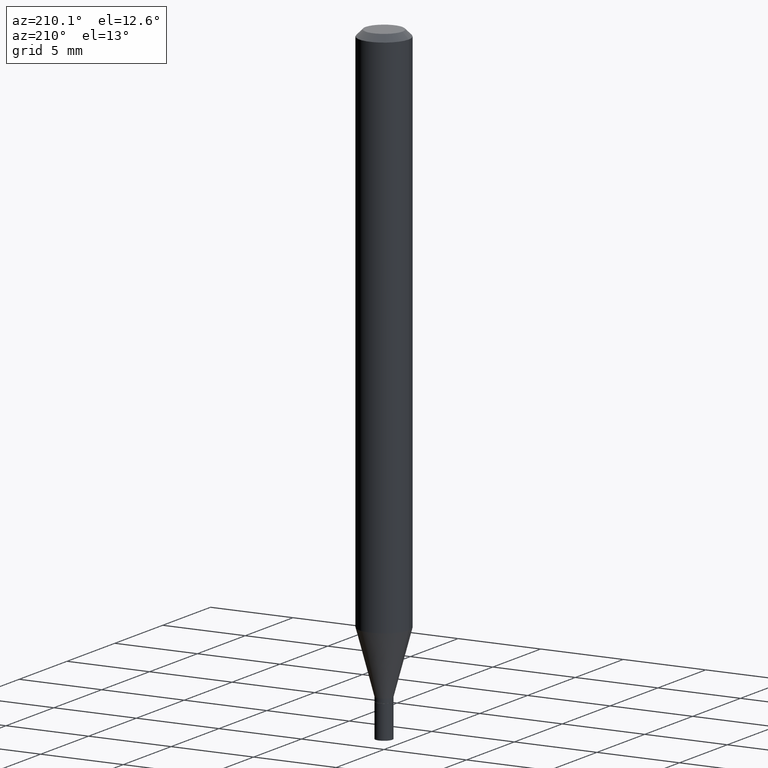
[diagram: clean part render]
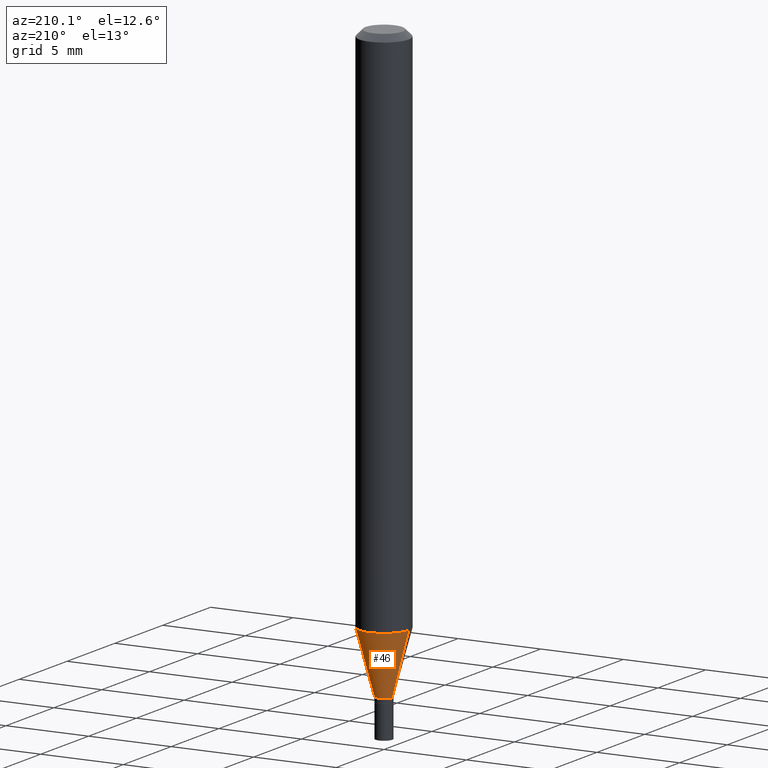
[diagram: same view with one face highlighted and labeled with its STEP entity id]
A machine part, auxiliary view. The second image highlights one B-rep face of the part: STEP entity #46.
In plain terms, the highlighted conical surface has half-angle 15 deg.
Its self-contained STEP definition (entity closure, byte-faithful):
#19 = DIRECTION ( 'NONE',  ( 0.2588190451025211836, 1.565188264969622559E-15, 0.9659258262890679791 ) ) ;
#36 = VERTEX_POINT ( 'NONE', #184 ) ;
#44 = CARTESIAN_POINT ( 'NONE',  ( -0.05905000000000001914, -3.994159004369345529E-15, -1.264143800722164368 ) ) ;
#46 = ADVANCED_FACE ( 'NONE', ( #214 ), #199, .T. ) ;
#58 = LINE ( 'NONE', #198, #325 ) ;
#77 = CARTESIAN_POINT ( 'NONE',  ( -0.01969999999999989468, -4.390331127266142070E-15, -1.410999999999999810 ) ) ;
#88 = VERTEX_POINT ( 'NONE', #44 ) ;
#93 = LINE ( 'NONE', #381, #219 ) ;
#102 = CIRCLE ( 'NONE', #372, 0.05905000000000001914 ) ;
#107 = DIRECTION ( 'NONE',  ( 1.000000000000000000, -6.982962677686266711E-15, 0.000000000000000000 ) ) ;
#121 = DIRECTION ( 'NONE',  ( -0.2588190451025211836, 5.211531920934547886E-15, 0.9659258262890679791 ) ) ;
#142 = CARTESIAN_POINT ( 'NONE',  ( 3.450556485527227151E-29, -4.926480169107677131E-15, -1.410999999999999810 ) ) ;
#159 = AXIS2_PLACEMENT_3D ( 'NONE', #225, #341, #190 ) ;
#167 = EDGE_CURVE ( 'NONE', #382, #88, #102, .T. ) ;
#176 = EDGE_CURVE ( 'NONE', #397, #88, #93, .T. ) ;
#184 = CARTESIAN_POINT ( 'NONE',  ( 0.01969999999999989468, -5.064044533858095556E-15, -1.410999999999999810 ) ) ;
#190 = DIRECTION ( 'NONE',  ( 1.000000000000000000, -6.982962677686266711E-15, 0.000000000000000000 ) ) ;
#197 = EDGE_CURVE ( 'NONE', #36, #382, #58, .T. ) ;
#198 = CARTESIAN_POINT ( 'NONE',  ( 0.01969999999999989468, -5.064044533858095556E-15, -1.410999999999999810 ) ) ;
#199 = CONICAL_SURFACE ( 'NONE', #159, 0.01969999999999989468, 0.2617993877991499074 ) ;
#214 = FACE_OUTER_BOUND ( 'NONE', #457, .T. ) ;
#219 = VECTOR ( 'NONE', #121, 39.37007874015748854 ) ;
#225 = CARTESIAN_POINT ( 'NONE',  ( 3.450556485527227151E-29, -4.926480169107677131E-15, -1.410999999999999810 ) ) ;
#231 = CARTESIAN_POINT ( 'NONE',  ( 3.091424231198372341E-29, -4.413734489835684233E-15, -1.264143800722164368 ) ) ;
#253 = ORIENTED_EDGE ( 'NONE', *, *, #167, .F. ) ;
#274 = DIRECTION ( 'NONE',  ( -2.445468806185136597E-29, 3.491481338843145583E-15, 1.000000000000000000 ) ) ;
#281 = EDGE_CURVE ( 'NONE', #36, #397, #283, .T. ) ;
#283 = CIRCLE ( 'NONE', #441, 0.01969999999999989468 ) ;
#324 = CARTESIAN_POINT ( 'NONE',  ( 0.05905000000000001914, -4.826078435953059153E-15, -1.264143800722164368 ) ) ;
#325 = VECTOR ( 'NONE', #19, 39.37007874015748854 ) ;
#333 = ORIENTED_EDGE ( 'NONE', *, *, #176, .T. ) ;
#341 = DIRECTION ( 'NONE',  ( -2.445468806185136597E-29, 3.491481338843145583E-15, 1.000000000000000000 ) ) ;
#372 = AXIS2_PLACEMENT_3D ( 'NONE', #231, #274, #418 ) ;
#381 = CARTESIAN_POINT ( 'NONE',  ( -0.01969999999999989468, -4.786503250162937822E-15, -1.410999999999999810 ) ) ;
#382 = VERTEX_POINT ( 'NONE', #324 ) ;
#397 = VERTEX_POINT ( 'NONE', #77 ) ;
#418 = DIRECTION ( 'NONE',  ( 1.000000000000000000, -6.982962677686270655E-15, 0.000000000000000000 ) ) ;
#431 = ORIENTED_EDGE ( 'NONE', *, *, #197, .F. ) ;
#437 = DIRECTION ( 'NONE',  ( -2.445468806185136597E-29, 3.491481338843145583E-15, 1.000000000000000000 ) ) ;
#441 = AXIS2_PLACEMENT_3D ( 'NONE', #142, #437, #107 ) ;
#450 = ORIENTED_EDGE ( 'NONE', *, *, #281, .T. ) ;
#457 = EDGE_LOOP ( 'NONE', ( #450, #333, #253, #431 ) ) ;